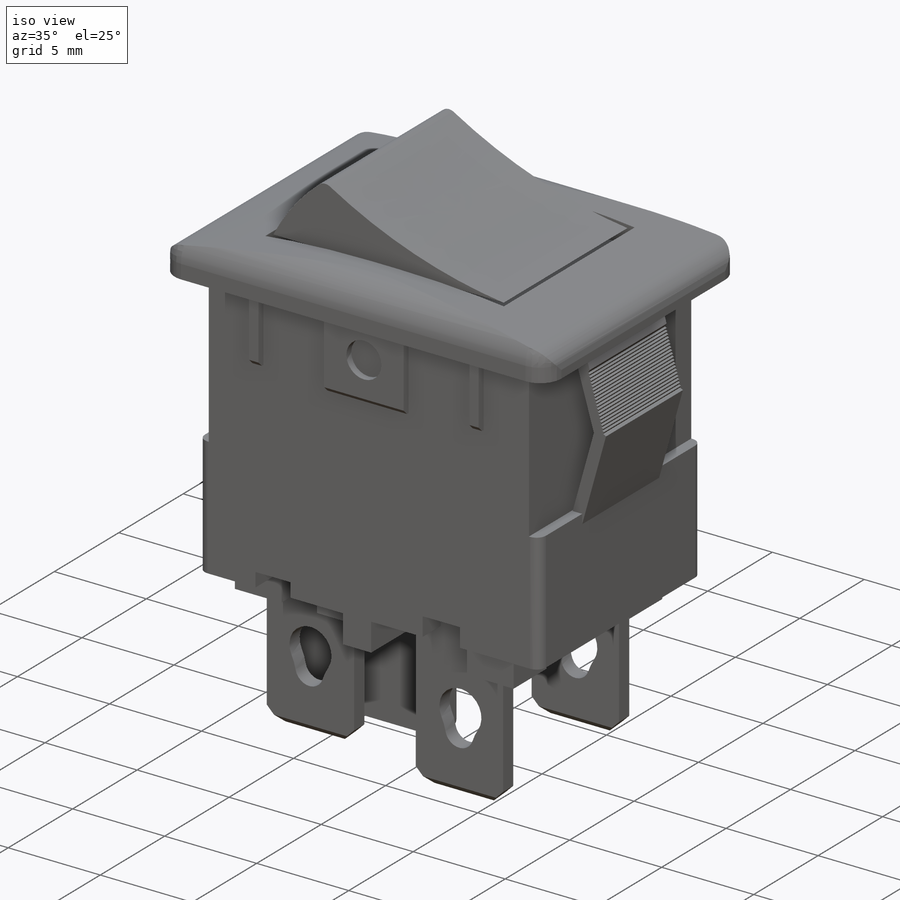
[diagram: iso view]
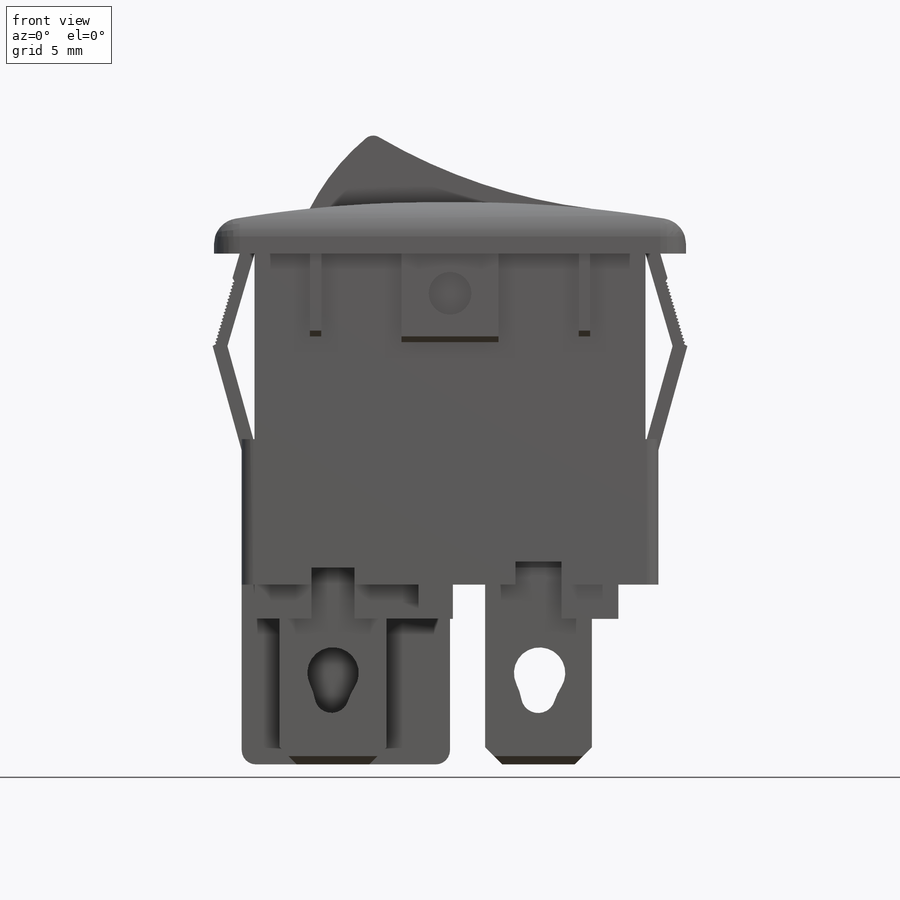
[diagram: front view]
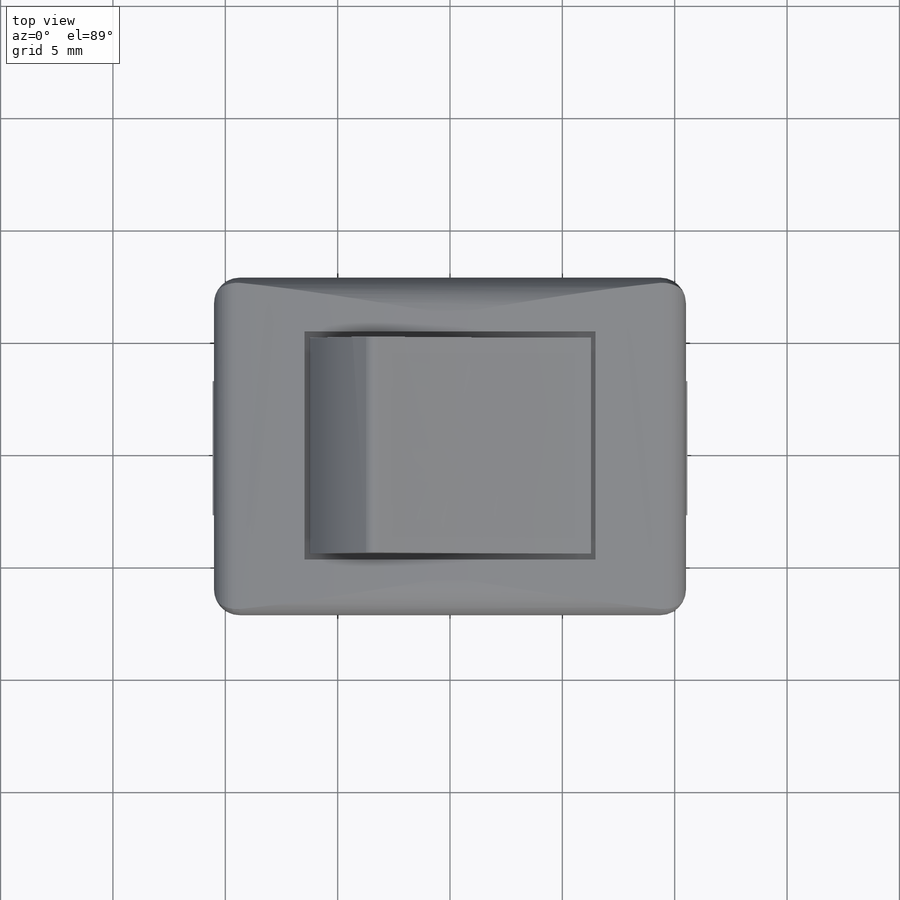
[diagram: top view]
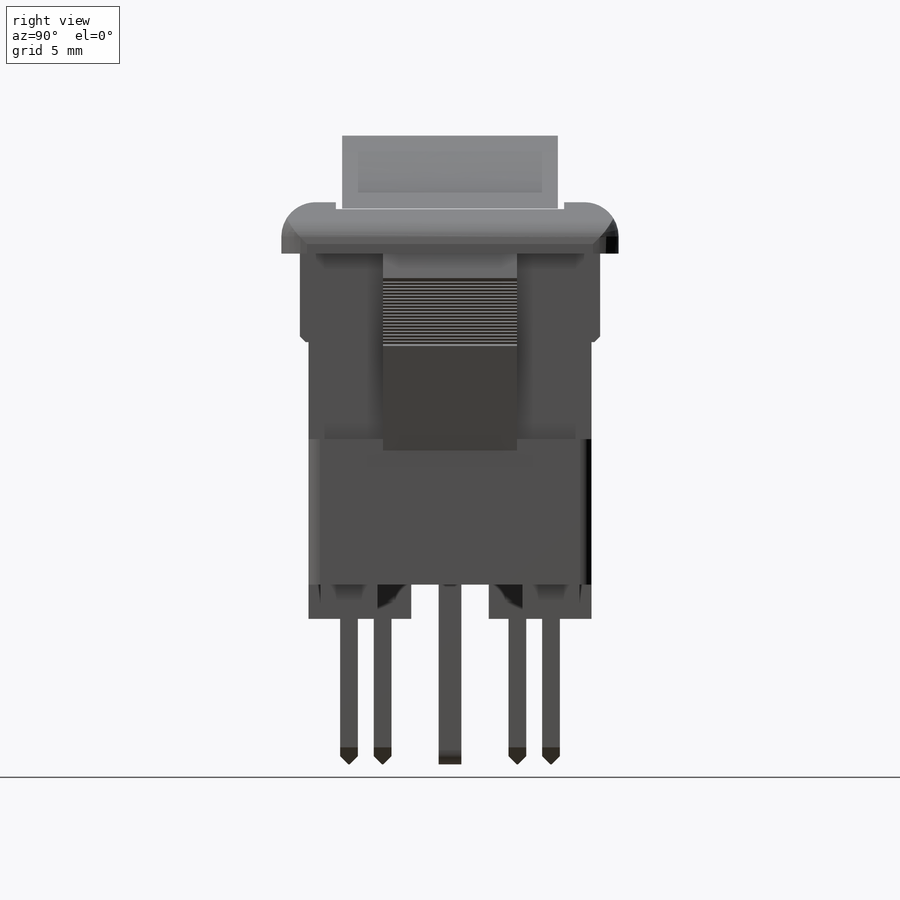
[diagram: right view]
SOLIDWORKS PART (.sldprt)
format: sldprt  version: not decoded by parser v0  size: 781,312 bytes
history: native  units: mm
features: sketch x16, extrude x8, cut_extrude x7, fillet x4, mirror x4, chamfer x3, material x1, pattern_linear x1, plane x1 (+12 scaffold rows collapsed)
feature tree (57):
  scaffold x12  (default folders/planes/origin — collapsed)
  material  "Material <not specified>"
  sketch  "Sketch1"  dims[D1=18.542mm D2=8.5979mm D3=14.732mm D4=5.842mm D5=1.524mm D6=1.524mm D7=1.524mm]
  extrude  "Extrude1"  Depth=12.5984mm
  sketch  "Sketch2"  dims[D5=0.508mm D1=21.0058mm D2=10.5029mm D3=15.0114mm D4=7.5057mm]
  extrude  "Extrude2"  Depth=2.286mm
  sketch  "Sketch16"  dims[D1=0.0mm]
  cut_extrude  "Cut-Extrude5"  Depth=17.78mm
  fillet  "Fillet1"  Radius=1.524mm
  fillet  "Fillet2"  Radius=1.143mm
  sketch  "Sketch19"  dims[c1.D1=~0.943176mm c1.D2=~1.890989mm c2.D1=1.905mm c2.D2=5.207mm c2.D3=0.762mm]
  cut_extrude  "Cut-Extrude10"  Depth=15.24mm
  sketch  "Sketch20"  dims[c1.D1=~1.398643mm c1.D2=~1.909596mm c2.D1=~1.398643mm c2.D2=~2.194794mm c3.D1=2.54mm c3.D2=2.54mm c3.D3=1.778mm c3.D4=2.54mm c3.D5=2.54mm c3.D6=1.27mm c3.D7=1.524mm c3.D8=9.398mm c3.D9=1.778mm c3.D10=2.54mm c4.D3=4.4958mm c4.D6=2.9972mm]
  extrude  "Boss-Extrude1"  Depth=1.524mm
  sketch  "Sketch21"  dims[c1.D1=0.762mm c1.D2=~2.152818mm c2.D1=2.032mm c2.D2=3.937mm]
  cut_extrude  "Cut-Extrude11"  Depth=1.905mm
  sketch  "Sketch22"  dims[c1.D1=~0.161382mm c1.D2=~0.178809mm c2.D1=~1.560025mm c2.D2=9.271mm c3.D1=1.016mm c3.D2=0.508mm]
  extrude  "Boss-Extrude2"  Depth=8.763mm
  fillet  "Fillet3"  Radius=0.635mm
  mirror  "Mirror3"
  sketch  "Sketch3"  dims[c1.D1=4.7498mm c1.D2=2.3749mm c1.D3=0.7874mm c1.D4=7.0104mm c2.D2=4.0005mm c2.D4=5.207mm c2.D5=~0.054665mm c3.D2=~0.037425mm]
  extrude  "Extrude3"  Depth=8.763mm
  chamfer  "Chamfer1"  Distance=0.762mm Angle=45deg
  chamfer  "Chamfer2"  Distance=0.3683mm Angle=45deg
  sketch  "Sketch23"  dims[D1=2.286mm D2=1.524mm D5=2.54mm D3=1.016mm D4=4.064mm D6=2.0]
  cut_extrude  "Cut-Extrude12"  [1 undecoded]
  mirror  "Mirror4"
  sketch  "Sketch18"  dims[c1.D1=~9.863664mm c1.D2=~12.910554mm c2.D1=12.954mm c2.D2=10.16mm]
  cut_extrude  "Cut-Extrude9"  Depth=1.27mm
  sketch  "Sketch6"  dims[D1=0.508mm D2=3.2512mm]
  extrude  "Extrude4"  Depth=9.6012mm
  sketch  "Sketch10"  dims[D5=1.905mm D1=0.508mm D2=0.508mm D3=3.683mm D4=4.318mm]
  extrude  "Extrude7"  Depth=0.381mm
  chamfer  "Chamfer4"  Distance=0.254mm Angle=45deg
  mirror  "Mirror1"
  sketch  "Sketch17"  dims[D1=17.399mm D2=10.287mm]
  cut_extrude  "Cut-Extrude6"  Depth=15.24mm
  sketch  "Sketch12"  dims[c1.D1=0.6985mm c1.D2=~1.079543mm c2.D2=11.5deg c2.D3=5.9182mm c2.D1=10.795mm c2.D4=0.635mm c3.D2=0.635mm]
  extrude  "Extrude9"  Depth=5.969mm
  sketch  "Sketch13"  dims[c1.D1=0.2208mm c2.D1=90.0deg c2.D2=0.127mm c2.D3=~2.732927mm c3.D3=45.0deg c3.D4=0.254mm]
  cut_extrude  "Cut-Extrude3"  [1 undecoded]
  pattern_linear  "LPattern4"  Count1=20 Count2=1 Spacing1=0.1524mm Spacing2=50mm
  mirror  "Mirror2"
  fillet  "Fillet4"  Radius=0.508mm
  plane  "Plane1"
  sketch  "Sketch24"  dims[c1.D1=~2.918692mm c1.D3=3.175mm c1.D4=2.159mm c2.D1=~0.461486mm c2.D2=~2.999658mm c3.D1=3.048mm c3.D2=0.508mm c3.D3=~3.795866mm c3.D5=4.318mm]
decode coverage: 37 of 43 modeling features carry decoded parameters
note: ~ marks probable driven/reference dimensions
note: 2 parameter values undecoded
note: suppression state not decoded; provenance and decode notes live in map.json
